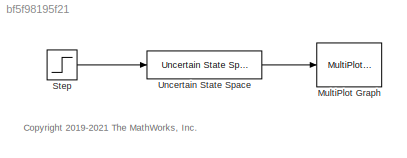
MODEL slx_bf5f98195f21
KIND model
CONFIG AbsTol = auto
CONFIG EnableMultiTasking = off
CONFIG FixedStep = auto
CONFIG MaxStep = auto
CONFIG MinStep = auto
CONFIG RelTol = 1e-3
CONFIG SampleTimeConstraint = Unconstrained
CONFIG SolverName = VariableStepAuto
CONFIG StartTime = 0.0
CONFIG StopTime = 40
BLOCK [Reference] MultiPlot Graph  REF=RCTblocks/MultiPlot Graph
  SourceBlock = RCTblocks/MultiPlot Graph
  SourceType = MultiPlot Graph
  Tag = MultiPlot
BLOCK [Step] Step
  SampleTime = 0
BLOCK [Reference] Uncertain State Space  REF=RCTblocks/Uncertain State Space
  SourceBlock = RCTblocks/Uncertain State Space
  SourceType = Uncertain State Space Block
  Tag = USS
ANNOTATION (root): <copyright redacted>
LINE Step:1 -> Uncertain State Space:1
LINE Uncertain State Space:1 -> MultiPlot Graph:1
